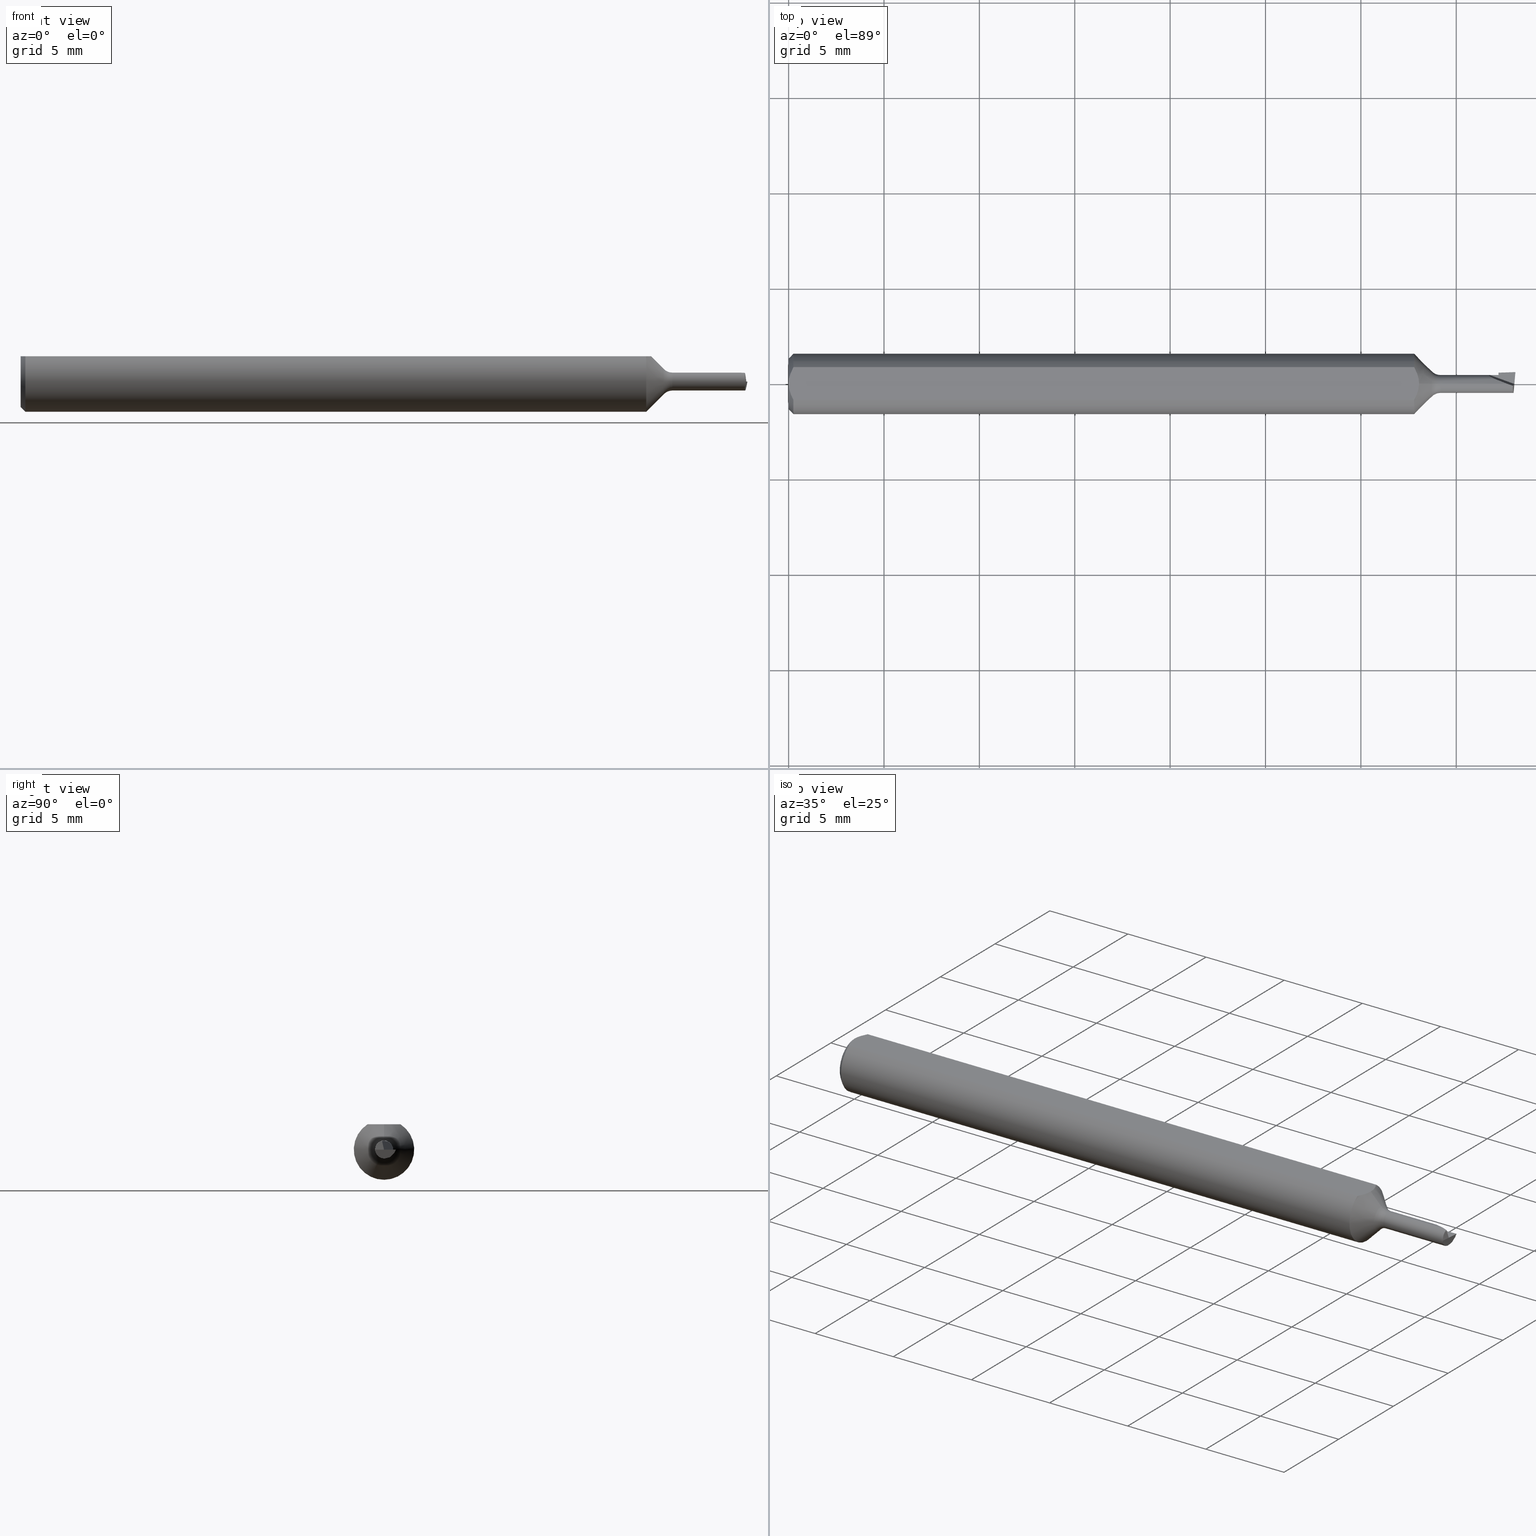
[diagram: canonical four-view strip — front | top / right | iso, engineering-drawing reading convention]
A machine part, canonical four-view strip (front | top / right | iso — engineering-drawing reading convention). The complete STEP part file that produces these views, byte-faithful:
ISO-10303-21;
HEADER;
FILE_DESCRIPTION (( 'STEP AP203' ),
    '1' );
FILE_NAME ('210046-MB045150.STEP',
    '2025-01-30T18:56:11',
    ( '' ),
    ( '' ),
    'SwSTEP 2.0',
    'SolidWorks 2024',
    '' );
FILE_SCHEMA (( 'CONFIG_CONTROL_DESIGN' ));
ENDSEC;

DATA;
#1 = LINE ( 'NONE', #96, #425 ) ;
#2 = DIRECTION ( 'NONE',  ( 0.1396943646708924958, 0.000000000000000000, -0.9901946699913082295 ) ) ;
#3 = EDGE_LOOP ( 'NONE', ( #133, #357, #238, #521, #467 ) ) ;
#4 = PERSON ( 'UNSPECIFIED', 'UNSPECIFIED', 'UNSPECIFIED', ('UNSPECIFIED'), ('UNSPECIFIED'), ('UNSPECIFIED') ) ;
#5 = CC_DESIGN_APPROVAL ( #533, ( #24 ) ) ;
#6 = EDGE_CURVE ( 'NONE', #354, #415, #630, .T. ) ;
#7 = ORIENTED_EDGE ( 'NONE', *, *, #249, .T. ) ;
#8 = VECTOR ( 'NONE', #621, 39.37007874015748143 ) ;
#9 = ORIENTED_EDGE ( 'NONE', *, *, #112, .T. ) ;
#10 = PERSON_AND_ORGANIZATION_ROLE ( 'classification_officer' ) ;
#11 = FACE_OUTER_BOUND ( 'NONE', #302, .T. ) ;
#12 = ORIENTED_EDGE ( 'NONE', *, *, #419, .T. ) ;
#13 = EDGE_CURVE ( 'NONE', #319, #309, #231, .T. ) ;
#14 = AXIS2_PLACEMENT_3D ( 'NONE', #240, #185, #379 ) ;
#15 = CARTESIAN_POINT ( 'NONE',  ( 1.465000000000000080, 0.01850000000000000255, -6.508939666095427711E-17 ) ) ;
#16 = ORIENTED_EDGE ( 'NONE', *, *, #522, .F. ) ;
#17 = VECTOR ( 'NONE', #45, 39.37007874015747433 ) ;
#18 = CARTESIAN_POINT ( 'NONE',  ( 0.01000000000000840841, -0.03386738844395137393, 0.05235000000000001458 ) ) ;
#19 = ORIENTED_EDGE ( 'NONE', *, *, #171, .T. ) ;
#20 = B_SPLINE_CURVE_WITH_KNOTS ( 'NONE', 3,
 ( #507, #25, #423, #230, #420, #366 ),
 .UNSPECIFIED., .F., .F.,
 ( 4, 2, 4 ),
 ( 0.0009229516234078821539, 0.001371626545108044996, 0.001820301466808207621 ),
 .UNSPECIFIED. ) ;
#21 = CARTESIAN_POINT ( 'NONE',  ( 1.453559267999332549, 0.01083704909609771623, 0.01850000000000004072 ) ) ;
#22 = EDGE_CURVE ( 'NONE', #146, #117, #435, .T. ) ;
#23 = ORIENTED_EDGE ( 'NONE', *, *, #33, .F. ) ;
#24 = PRODUCT_DEFINITION_FORMATION_WITH_SPECIFIED_SOURCE ( 'ANY', '', #540, .NOT_KNOWN. ) ;
#25 = CARTESIAN_POINT ( 'NONE',  ( 0.007185421074056205608, 0.02868573718286560742, 0.05235000000000002152 ) ) ;
#26 = VECTOR ( 'NONE', #432, 39.37007874015748854 ) ;
#27 = VERTEX_POINT ( 'NONE', #541 ) ;
#28 = LINE ( 'NONE', #338, #90 ) ;
#29 = ORIENTED_EDGE ( 'NONE', *, *, #608, .F. ) ;
#30 = CARTESIAN_POINT ( 'NONE',  ( 1.291150000000000242, -0.03386738844375220686, 0.05235000000000000070 ) ) ;
#31 = DIRECTION ( 'NONE',  ( 0.9396926207859126468, -0.3420201433256567780, 0.000000000000000000 ) ) ;
#32 = ORIENTED_EDGE ( 'NONE', *, *, #69, .F. ) ;
#33 = EDGE_CURVE ( 'NONE', #607, #67, #137, .T. ) ;
#34 = DIRECTION ( 'NONE',  ( 1.000000000000000000, 0.000000000000000000, 0.000000000000000000 ) ) ;
#35 = CARTESIAN_POINT ( 'NONE',  ( 1.446998957439701083, 0.01849999999999999908, -4.483286445232968331E-18 ) ) ;
#36 = DIRECTION ( 'NONE',  ( -1.000000000000000000, -0.000000000000000000, -0.000000000000000000 ) ) ;
#37 = CC_DESIGN_PERSON_AND_ORGANIZATION_ASSIGNMENT ( #155, #356, ( #24 ) ) ;
#38 = CARTESIAN_POINT ( 'NONE',  ( 1.465000000000000080, 0.004788152334396648772, -0.01786962778634774984 ) ) ;
#39 = VECTOR ( 'NONE', #148, 39.37007874015748143 ) ;
#40 = PLANE ( 'NONE',  #14 ) ;
#41 = DIRECTION ( 'NONE',  ( 0.000000000000000000, 1.000000000000000000, 1.150753554054429375E-16 ) ) ;
#42 = EDGE_CURVE ( 'NONE', #607, #79, #422, .T. ) ;
#43 = DIRECTION ( 'NONE',  ( 0.000000000000000000, 0.000000000000000000, 1.000000000000000000 ) ) ;
#44 = DIRECTION ( 'NONE',  ( 0.000000000000000000, 0.000000000000000000, 1.000000000000000000 ) ) ;
#45 = DIRECTION ( 'NONE',  ( -0.000000000000000000, 0.9659258262890682012, 0.2588190451025212946 ) ) ;
#46 = CC_DESIGN_DATE_AND_TIME_ASSIGNMENT ( #270, #468, ( #371 ) ) ;
#47 = LOCAL_TIME ( 10, 56, 11.00000000000000000, #158 ) ;
#48 = ORIENTED_EDGE ( 'NONE', *, *, #212, .T. ) ;
#49 = AXIS2_PLACEMENT_3D ( 'NONE', #600, #308, #206 ) ;
#50 = CARTESIAN_POINT ( 'NONE',  ( 0.000000000000000000, 0.000000000000000000, 0.000000000000000000 ) ) ;
#51 = CIRCLE ( 'NONE', #391, 0.02582233047033637499 ) ;
#52 = DATE_AND_TIME ( #503, #47 ) ;
#53 = FACE_OUTER_BOUND ( 'NONE', #54, .T. ) ;
#54 = EDGE_LOOP ( 'NONE', ( #374, #557, #16, #407, #605, #473, #323, #500 ) ) ;
#55 = EDGE_CURVE ( 'NONE', #108, #463, #227, .T. ) ;
#56 = DATE_AND_TIME ( #641, #510 ) ;
#57 = AXIS2_PLACEMENT_3D ( 'NONE', #571, #114, #412 ) ;
#58 =( NAMED_UNIT ( * ) PLANE_ANGLE_UNIT ( ) SI_UNIT ( $, .RADIAN. ) );
#59 = ORIENTED_EDGE ( 'NONE', *, *, #212, .F. ) ;
#60 = DIRECTION ( 'NONE',  ( 0.000000000000000000, -0.7073221891495888869, -0.7068913075831623205 ) ) ;
#61 = ADVANCED_FACE ( 'NONE', ( #53 ), #346, .T. ) ;
#62 = ORIENTED_EDGE ( 'NONE', *, *, #601, .F. ) ;
#63 = CARTESIAN_POINT ( 'NONE',  ( 1.500000000000000222, 0.02450000000000000094, -2.134256245050205639E-18 ) ) ;
#64 = ORIENTED_EDGE ( 'NONE', *, *, #451, .F. ) ;
#65 = VECTOR ( 'NONE', #439, 39.37007874015748854 ) ;
#66 = CARTESIAN_POINT ( 'NONE',  ( 0.000000000000000000, 0.000000000000000000, 0.000000000000000000 ) ) ;
#67 = VERTEX_POINT ( 'NONE', #440 ) ;
#68 = ADVANCED_FACE ( 'NONE', ( #636 ), #552, .T. ) ;
#69 = EDGE_CURVE ( 'NONE', #284, #433, #211, .T. ) ;
#70 = PERSON_AND_ORGANIZATION ( #4, #568 ) ;
#71 = PRODUCT_DEFINITION_SHAPE ( 'NONE', 'NONE',  #549 ) ;
#72 = LINE ( 'NONE', #539, #26 ) ;
#73 = ORIENTED_EDGE ( 'NONE', *, *, #130, .T. ) ;
#74 = DIRECTION ( 'NONE',  ( 0.02467767077832642292, -0.7066760308408334135, 0.7071067811865490160 ) ) ;
#75 = ORIENTED_EDGE ( 'NONE', *, *, #555, .T. ) ;
#76 = CARTESIAN_POINT ( 'NONE',  ( 0.000000000000000000, 0.000000000000000000, 0.000000000000000000 ) ) ;
#77 = AXIS2_PLACEMENT_3D ( 'NONE', #577, #535, #294 ) ;
#78 = DIRECTION ( 'NONE',  ( 0.000000000000000000, 0.9659258262890682012, 0.2588190451025212391 ) ) ;
#79 = VERTEX_POINT ( 'NONE', #153 ) ;
#80 = LINE ( 'NONE', #142, #65 ) ;
#81 = PLANE ( 'NONE',  #166 ) ;
#82 = ORIENTED_EDGE ( 'NONE', *, *, #562, .F. ) ;
#83 = ADVANCED_FACE ( 'NONE', ( #352 ), #453, .T. ) ;
#84 = DIRECTION ( 'NONE',  ( -1.000000000000000000, -0.000000000000000000, -0.000000000000000000 ) ) ;
#85 = CARTESIAN_POINT ( 'NONE',  ( 1.483333815684383605, 0.000000000000000000, 0.01850000000000000255 ) ) ;
#86 = ORIENTED_EDGE ( 'NONE', *, *, #482, .T. ) ;
#87 = CARTESIAN_POINT ( 'NONE',  ( 1.500000000000000222, 0.06235000000000000264, 0.05235000000000001458 ) ) ;
#88 = CARTESIAN_POINT ( 'NONE',  ( 1.487126106453287244, -0.001380280959563399447, 0.01850000000000000602 ) ) ;
#89 = EDGE_LOOP ( 'NONE', ( #563, #381, #59, #365 ) ) ;
#90 = VECTOR ( 'NONE', #532, 39.37007874015748143 ) ;
#91 = DIRECTION ( 'NONE',  ( 0.000000000000000000, 0.000000000000000000, 1.000000000000000000 ) ) ;
#92 = CLOSED_SHELL ( 'NONE', ( #573, #310, #402, #61, #245, #355, #204, #316, #337, #68, #378, #103, #259, #239, #543, #449, #222, #83, #461 ) ) ;
#93 = PLANE ( 'NONE',  #363 ) ;
#94 = CARTESIAN_POINT ( 'NONE',  ( 1.345355339059327360, 5.327213576290986981E-18, -0.04350000000000000394 ) ) ;
#95 =( NAMED_UNIT ( * ) SI_UNIT ( $, .STERADIAN. ) SOLID_ANGLE_UNIT ( ) );
#96 = CARTESIAN_POINT ( 'NONE',  ( 1.498845433956495388, 0.02150713782118080994, -0.006327893575437197257 ) ) ;
#97 = DIRECTION ( 'NONE',  ( 0.000000000000000000, 0.000000000000000000, -1.000000000000000000 ) ) ;
#98 = ORIENTED_EDGE ( 'NONE', *, *, #42, .T. ) ;
#99 = VECTOR ( 'NONE', #358, 39.37007874015748854 ) ;
#100 = PERSON_AND_ORGANIZATION ( #4, #568 ) ;
#101 = CARTESIAN_POINT ( 'NONE',  ( 1.327677669529663707, 3.162323435702260084E-18, -0.02582233047033637152 ) ) ;
#102 = VERTEX_POINT ( 'NONE', #304 ) ;
#103 = ADVANCED_FACE ( 'NONE', ( #390 ), #177, .T. ) ;
#104 = PERSON_AND_ORGANIZATION ( #4, #568 ) ;
#105 = DIRECTION ( 'NONE',  ( -1.000000000000000000, -0.000000000000000000, -0.000000000000000000 ) ) ;
#106 = ORIENTED_EDGE ( 'NONE', *, *, #562, .T. ) ;
#107 = APPROVAL_DATE_TIME ( #56, #384 ) ;
#108 = VERTEX_POINT ( 'NONE', #101 ) ;
#109 = CIRCLE ( 'NONE', #598, 0.01850000000000000949 ) ;
#110 = TOROIDAL_SURFACE ( 'NONE', #477, 0.04350000000000000394, 0.02499999999999999445 ) ;
#111 = DATE_AND_TIME ( #464, #620 ) ;
#112 = EDGE_CURVE ( 'NONE', #433, #146, #403, .T. ) ;
#113 = APPLICATION_CONTEXT ( 'configuration controlled 3d designs of mechanical parts and assemblies' ) ;
#114 = DIRECTION ( 'NONE',  ( 0.000000000000000000, -1.000000000000000000, 0.000000000000000000 ) ) ;
#115 = ORIENTED_EDGE ( 'NONE', *, *, #565, .F. ) ;
#116 = CARTESIAN_POINT ( 'NONE',  ( 0.007163450771416182694, -0.02864528976632487248, 0.05235000000000001458 ) ) ;
#117 = VERTEX_POINT ( 'NONE', #545 ) ;
#118 = CARTESIAN_POINT ( 'NONE',  ( 1.465000000000000080, 0.01849999999999999908, -3.729330705459841584E-18 ) ) ;
#119 = EDGE_LOOP ( 'NONE', ( #493, #361, #12, #418, #518, #628 ) ) ;
#120 = DIRECTION ( 'NONE',  ( 0.000000000000000000, 0.000000000000000000, -1.000000000000000000 ) ) ;
#121 = DIRECTION ( 'NONE',  ( 0.9396926207859126468, -0.3420201433256568335, -0.000000000000000000 ) ) ;
#122 = EDGE_LOOP ( 'NONE', ( #566, #488, #526, #150, #126, #513, #265 ) ) ;
#123 = EDGE_CURVE ( 'NONE', #108, #67, #279, .T. ) ;
#124 = AXIS2_PLACEMENT_3D ( 'NONE', #149, #262, #194 ) ;
#125 = CARTESIAN_POINT ( 'NONE',  ( 1.460138284237282980, 0.01984185495899845955, -0.006999999999999996676 ) ) ;
#126 = ORIENTED_EDGE ( 'NONE', *, *, #565, .T. ) ;
#127 = LINE ( 'NONE', #629, #218 ) ;
#128 = CARTESIAN_POINT ( 'NONE',  ( 1.495246590703220857, 2.265596578422603809E-18, -0.01850000000000000255 ) ) ;
#129 = FACE_OUTER_BOUND ( 'NONE', #89, .T. ) ;
#130 = EDGE_CURVE ( 'NONE', #108, #213, #373, .T. ) ;
#131 = AXIS2_PLACEMENT_3D ( 'NONE', #368, #223, #120 ) ;
#132 = DIRECTION ( 'NONE',  ( 0.1396943646708782849, 0.000000000000000000, 0.9901946699913101169 ) ) ;
#133 = ORIENTED_EDGE ( 'NONE', *, *, #180, .T. ) ;
#134 = VECTOR ( 'NONE', #504, 39.37007874015748143 ) ;
#135 = CARTESIAN_POINT ( 'NONE',  ( 1.345355339059327360, 0.000000000000000000, 0.000000000000000000 ) ) ;
#136 = DIRECTION ( 'NONE',  ( 0.000000000000000000, 0.000000000000000000, -1.000000000000000000 ) ) ;
#137 = LINE ( 'NONE', #576, #643 ) ;
#138 =( BOUNDED_CURVE ( )  B_SPLINE_CURVE ( 3, ( #380, #144, #638, #190 ),
 .UNSPECIFIED., .F., .F. ) 
 B_SPLINE_CURVE_WITH_KNOTS ( ( 4, 4 ),
 ( 5.466285219765468995, 5.728084607564617237 ),
 .UNSPECIFIED. ) 
 CURVE ( )  GEOMETRIC_REPRESENTATION_ITEM ( )  RATIONAL_B_SPLINE_CURVE ( ( 1.000000000000000000, 0.9942965742492069214, 0.9942965742492069214, 1.000000000000000000 ) ) 
 REPRESENTATION_ITEM ( '' )  );
#139 = CARTESIAN_POINT ( 'NONE',  ( 1.465000000000000080, 0.01072789620067145060, -0.01627807821413169986 ) ) ;
#140 = DIRECTION ( 'NONE',  ( 0.000000000000000000, 0.2588190451025212391, -0.9659258262890682012 ) ) ;
#141 = CARTESIAN_POINT ( 'NONE',  ( 0.000000000000000000, 0.000000000000000000, 0.01850000000000000255 ) ) ;
#142 = CARTESIAN_POINT ( 'NONE',  ( 1.500296196177055563, 0.02788553779562382914, 3.030643867971292100E-16 ) ) ;
#143 = APPROVAL_PERSON_ORGANIZATION ( #100, #533, #307 ) ;
#144 = CARTESIAN_POINT ( 'NONE',  ( 1.495558491035186899, 0.003224263161052952440, -0.01828867062739698152 ) ) ;
#145 = DIRECTION ( 'NONE',  ( 1.000000000000000000, 0.000000000000000000, 0.000000000000000000 ) ) ;
#146 = VERTEX_POINT ( 'NONE', #251 ) ;
#147 = DIRECTION ( 'NONE',  ( -0.1627401076574647998, -0.4218543546513220388, -0.8919386530593645945 ) ) ;
#148 = DIRECTION ( 'NONE',  ( -0.1593925713349118589, -0.7010550863643484343, -0.6950653020299035756 ) ) ;
#149 = CARTESIAN_POINT ( 'NONE',  ( 0.000000000000000000, 0.000000000000000000, 0.000000000000000000 ) ) ;
#150 = ORIENTED_EDGE ( 'NONE', *, *, #232, .F. ) ;
#151 = DIRECTION ( 'NONE',  ( 1.000000000000000000, 0.000000000000000000, 0.000000000000000000 ) ) ;
#152 = EDGE_CURVE ( 'NONE', #537, #597, #639, .T. ) ;
#153 = CARTESIAN_POINT ( 'NONE',  ( 1.496237987468385322, -0.01849999999999997827, 2.346737396167181165E-16 ) ) ;
#154 = APPROVAL_PERSON_ORGANIZATION ( #104, #384, #599 ) ;
#155 = PERSON_AND_ORGANIZATION ( #4, #568 ) ;
#156 = CARTESIAN_POINT ( 'NONE',  ( 1.345355339059327360, 0.000000000000000000, 0.000000000000000000 ) ) ;
#157 = VECTOR ( 'NONE', #145, 39.37007874015748143 ) ;
#158 = COORDINATED_UNIVERSAL_TIME_OFFSET ( 8, 0, .BEHIND. ) ;
#159 = ORIENTED_EDGE ( 'NONE', *, *, #614, .T. ) ;
#160 = EDGE_CURVE ( 'NONE', #102, #597, #202, .T. ) ;
#161 = APPROVAL_STATUS ( 'not_yet_approved' ) ;
#162 = ORIENTED_EDGE ( 'NONE', *, *, #522, .T. ) ;
#163 = VECTOR ( 'NONE', #181, 39.37007874015748854 ) ;
#164 = VECTOR ( 'NONE', #631, 39.37007874015748854 ) ;
#165 = DIRECTION ( 'NONE',  ( 0.000000000000000000, 0.000000000000000000, 1.000000000000000000 ) ) ;
#166 = AXIS2_PLACEMENT_3D ( 'NONE', #480, #196, #582 ) ;
#167 = ORIENTED_EDGE ( 'NONE', *, *, #180, .F. ) ;
#168 = DIRECTION ( 'NONE',  ( -1.000000000000000000, -0.000000000000000000, -0.000000000000000000 ) ) ;
#169 = EDGE_LOOP ( 'NONE', ( #115, #569, #634, #462 ) ) ;
#170 = LINE ( 'NONE', #125, #99 ) ;
#171 = EDGE_CURVE ( 'NONE', #293, #27, #220, .T. ) ;
#172 = ORIENTED_EDGE ( 'NONE', *, *, #601, .T. ) ;
#173 = PERSON_AND_ORGANIZATION ( #4, #568 ) ;
#174 = CARTESIAN_POINT ( 'NONE',  ( 0.000000000000000000, 0.000000000000000000, 0.000000000000000000 ) ) ;
#175 = ORIENTED_EDGE ( 'NONE', *, *, #199, .T. ) ;
#176 = PRODUCT_RELATED_PRODUCT_CATEGORY ( 'detail', '', ( #540 ) ) ;
#177 = CONICAL_SURFACE ( 'NONE', #450, 0.05235000000000033377, 0.7853981633974376209 ) ;
#178 = DIRECTION ( 'NONE',  ( -1.000000000000000000, -0.000000000000000000, -0.000000000000000000 ) ) ;
#179 = CARTESIAN_POINT ( 'NONE',  ( 1.296488788636946277, 0.02320328458619742157, 0.05235000000000002152 ) ) ;
#180 = EDGE_CURVE ( 'NONE', #269, #415, #517, .T. ) ;
#181 = DIRECTION ( 'NONE',  ( 0.1201445221440181205, 0.9589290576775757469, 0.2569442666034444378 ) ) ;
#182 = LINE ( 'NONE', #578, #531 ) ;
#183 = ORIENTED_EDGE ( 'NONE', *, *, #362, .T. ) ;
#184 = AXIS2_PLACEMENT_3D ( 'NONE', #441, #178, #574 ) ;
#185 = DIRECTION ( 'NONE',  ( 0.03162968562512429027, -0.9057556888204039147, 0.4226182617407007736 ) ) ;
#186 = AXIS2_PLACEMENT_3D ( 'NONE', #87, #334, #437 ) ;
#187 = DIRECTION ( 'NONE',  ( 0.000000000000000000, 0.000000000000000000, 1.000000000000000000 ) ) ;
#188 = CARTESIAN_POINT ( 'NONE',  ( 1.497856527743614885, 5.157748590581906026E-34, -4.482061838879143203E-18 ) ) ;
#189 = CARTESIAN_POINT ( 'NONE',  ( 1.301150000000000029, -0.005924734429433297159, 0.05235000000000002152 ) ) ;
#190 = CARTESIAN_POINT ( 'NONE',  ( 1.495246590703220857, 2.265596578422603809E-18, -0.01850000000000000255 ) ) ;
#191 = ORIENTED_EDGE ( 'NONE', *, *, #264, .T. ) ;
#192 = LINE ( 'NONE', #388, #163 ) ;
#193 = CARTESIAN_POINT ( 'NONE',  ( 1.496688055231696124, 0.01223983799721654366, -0.01587295463074458318 ) ) ;
#194 = DIRECTION ( 'NONE',  ( 0.000000000000000000, 0.000000000000000000, 1.000000000000000000 ) ) ;
#195 = CARTESIAN_POINT ( 'NONE',  ( 1.496237987468385322, -0.01849999999999997827, 2.346737396167181165E-16 ) ) ;
#196 = DIRECTION ( 'NONE',  ( 1.000000000000000000, 0.000000000000000000, 0.000000000000000000 ) ) ;
#197 = DIRECTION ( 'NONE',  ( -1.000000000000000000, -0.000000000000000000, -0.000000000000000000 ) ) ;
#198 = VECTOR ( 'NONE', #487, 39.37007874015748143 ) ;
#199 = EDGE_CURVE ( 'NONE', #313, #266, #272, .T. ) ;
#200 = PERSON_AND_ORGANIZATION ( #4, #568 ) ;
#201 = FACE_OUTER_BOUND ( 'NONE', #505, .T. ) ;
#202 = LINE ( 'NONE', #547, #602 ) ;
#203 = ORIENTED_EDGE ( 'NONE', *, *, #324, .F. ) ;
#204 = ADVANCED_FACE ( 'NONE', ( #250 ), #81, .F. ) ;
#205 = CALENDAR_DATE ( 2025, 30, 1 ) ;
#206 = DIRECTION ( 'NONE',  ( 0.000000000000000000, 0.000000000000000000, 1.000000000000000000 ) ) ;
#207 = CARTESIAN_POINT ( 'NONE',  ( 1.483333815684383605, 0.000000000000000000, 0.01850000000000000255 ) ) ;
#208 = DIRECTION ( 'NONE',  ( 1.000000000000000000, 0.000000000000000000, 0.000000000000000000 ) ) ;
#209 = DESIGN_CONTEXT ( 'detailed design', #113, 'design' ) ;
#210 = CARTESIAN_POINT ( 'NONE',  ( 1.494967355536287235, -0.01849999999999991582, 0.009006612182587471829 ) ) ;
#211 = CIRCLE ( 'NONE', #306, 0.06235000000000000264 ) ;
#212 = EDGE_CURVE ( 'NONE', #444, #284, #570, .T. ) ;
#213 = VERTEX_POINT ( 'NONE', #393 ) ;
#214 = ORIENTED_EDGE ( 'NONE', *, *, #471, .T. ) ;
#215 = COORDINATED_UNIVERSAL_TIME_OFFSET ( 8, 0, .BEHIND. ) ;
#216 = DIRECTION ( 'NONE',  ( -1.000000000000000000, -0.000000000000000000, -0.000000000000000000 ) ) ;
#217 = ORIENTED_EDGE ( 'NONE', *, *, #160, .F. ) ;
#218 = VECTOR ( 'NONE', #383, 39.37007874015748143 ) ;
#219 = FACE_OUTER_BOUND ( 'NONE', #326, .T. ) ;
#220 = CIRCLE ( 'NONE', #460, 0.05235000000000033377 ) ;
#221 = ORIENTED_EDGE ( 'NONE', *, *, #555, .F. ) ;
#222 = ADVANCED_FACE ( 'NONE', ( #335 ), #348, .F. ) ;
#223 = DIRECTION ( 'NONE',  ( -1.000000000000000000, -0.000000000000000000, -0.000000000000000000 ) ) ;
#224 = ORIENTED_EDGE ( 'NONE', *, *, #546, .T. ) ;
#225 = FACE_OUTER_BOUND ( 'NONE', #524, .T. ) ;
#226 = CC_DESIGN_PERSON_AND_ORGANIZATION_ASSIGNMENT ( #70, #10, ( #371 ) ) ;
#227 = LINE ( 'NONE', #395, #134 ) ;
#228 = LOCAL_TIME ( 10, 56, 11.00000000000000000, #215 ) ;
#229 = CIRCLE ( 'NONE', #551, 0.01849999999999999908 ) ;
#230 = CARTESIAN_POINT ( 'NONE',  ( 0.001063697276021357847, 0.01189177144351693735, 0.05235000000000001458 ) ) ;
#231 = LINE ( 'NONE', #141, #633 ) ;
#232 = EDGE_CURVE ( 'NONE', #408, #607, #138, .T. ) ;
#233 = FACE_OUTER_BOUND ( 'NONE', #288, .T. ) ;
#234 = DIRECTION ( 'NONE',  ( 4.188400406518391045E-17, 1.150753554054429375E-16, -1.000000000000000000 ) ) ;
#235 = ORIENTED_EDGE ( 'NONE', *, *, #130, .F. ) ;
#236 = CARTESIAN_POINT ( 'NONE',  ( 1.495246590703220857, 2.265596578422603809E-18, -0.01850000000000000255 ) ) ;
#237 = PLANE ( 'NONE',  #612 ) ;
#238 = ORIENTED_EDGE ( 'NONE', *, *, #490, .F. ) ;
#239 = ADVANCED_FACE ( 'NONE', ( #536 ), #93, .T. ) ;
#240 = CARTESIAN_POINT ( 'NONE',  ( 1.460024366919236094, 0.02310402013190050036, -1.572938430745744944E-18 ) ) ;
#241 = DIRECTION ( 'NONE',  ( 1.000000000000000000, 0.000000000000000000, 0.000000000000000000 ) ) ;
#242 = ORIENTED_EDGE ( 'NONE', *, *, #632, .T. ) ;
#243 = AXIS2_PLACEMENT_3D ( 'NONE', #349, #197, #43 ) ;
#244 = CARTESIAN_POINT ( 'NONE',  ( 1.494952902551172302, -0.004097954674002866546, 0.01804042038007480295 ) ) ;
#245 = ADVANCED_FACE ( 'NONE', ( #340 ), #237, .F. ) ;
#246 = FACE_OUTER_BOUND ( 'NONE', #3, .T. ) ;
#247 = CARTESIAN_POINT ( 'NONE',  ( 0.000000000000000000, 0.000000000000000000, 0.000000000000000000 ) ) ;
#248 = CARTESIAN_POINT ( 'NONE',  ( 1.345355339059327360, 0.000000000000000000, 0.000000000000000000 ) ) ;
#249 = EDGE_CURVE ( 'NONE', #481, #319, #253, .T. ) ;
#250 = FACE_OUTER_BOUND ( 'NONE', #550, .T. ) ;
#251 = CARTESIAN_POINT ( 'NONE',  ( 1.291150000000000242, 0.03386738844375220686, 0.05235000000000000070 ) ) ;
#252 = APPROVAL_STATUS ( 'not_yet_approved' ) ;
#253 =( BOUNDED_CURVE ( )  B_SPLINE_CURVE ( 3, ( #298, #591, #88, #85 ),
 .UNSPECIFIED., .F., .F. ) 
 B_SPLINE_CURVE_WITH_KNOTS ( ( 4, 4 ),
 ( 4.766799014753298813, 4.990162771046300350 ),
 .UNSPECIFIED. ) 
 CURVE ( )  GEOMETRIC_REPRESENTATION_ITEM ( )  RATIONAL_B_SPLINE_CURVE ( ( 1.000000000000000000, 0.9958467056734143785, 0.9958467056734143785, 1.000000000000000000 ) ) 
 REPRESENTATION_ITEM ( '' )  );
#254 = CC_DESIGN_APPROVAL ( #384, ( #549 ) ) ;
#255 = CARTESIAN_POINT ( 'NONE',  ( 1.345355339059327360, 0.000000000000000000, 0.01850000000000000949 ) ) ;
#256 = DIRECTION ( 'NONE',  ( 0.000000000000000000, -0.7073221891495888869, -0.7068913075831623205 ) ) ;
#257 = AXIS2_PLACEMENT_3D ( 'NONE', #417, #74, #60 ) ;
#258 = ORIENTED_EDGE ( 'NONE', *, *, #431, .F. ) ;
#259 = ADVANCED_FACE ( 'NONE', ( #246 ), #287, .F. ) ;
#260 = CARTESIAN_POINT ( 'NONE',  ( 0.000000000000000000, 0.000000000000000000, 0.000000000000000000 ) ) ;
#261 = APPROVAL_DATE_TIME ( #52, #533 ) ;
#262 = DIRECTION ( 'NONE',  ( -1.000000000000000000, -0.000000000000000000, -0.000000000000000000 ) ) ;
#263 = LENGTH_MEASURE_WITH_UNIT ( LENGTH_MEASURE( 0.02539999999999999897 ), #637 );
#264 = EDGE_CURVE ( 'NONE', #213, #108, #51, .T. ) ;
#265 = ORIENTED_EDGE ( 'NONE', *, *, #640, .F. ) ;
#266 = VERTEX_POINT ( 'NONE', #193 ) ;
#267 = DIRECTION ( 'NONE',  ( 0.000000000000000000, 0.000000000000000000, -1.000000000000000000 ) ) ;
#268 = EDGE_CURVE ( 'NONE', #408, #537, #442, .T. ) ;
#269 = VERTEX_POINT ( 'NONE', #35 ) ;
#270 = DATE_AND_TIME ( #613, #228 ) ;
#271 = DIRECTION ( 'NONE',  ( 1.000000000000000000, 0.000000000000000000, 0.000000000000000000 ) ) ;
#272 = LINE ( 'NONE', #528, #39 ) ;
#273 = ORIENTED_EDGE ( 'NONE', *, *, #409, .F. ) ;
#274 =( BOUNDED_CURVE ( )  B_SPLINE_CURVE ( 3, ( #325, #21, #610, #564 ),
 .UNSPECIFIED., .F., .F. ) 
 B_SPLINE_CURVE_WITH_KNOTS ( ( 4, 4 ),
 ( 4.990162771046300350, 6.560959097841200460 ),
 .UNSPECIFIED. ) 
 CURVE ( )  GEOMETRIC_REPRESENTATION_ITEM ( )  RATIONAL_B_SPLINE_CURVE ( ( 1.000000000000000000, 0.8047378541243641603, 0.8047378541243641603, 1.000000000000000000 ) ) 
 REPRESENTATION_ITEM ( '' )  );
#275 = EDGE_CURVE ( 'NONE', #269, #430, #182, .T. ) ;
#276 = AXIS2_PLACEMENT_3D ( 'NONE', #66, #271, #267 ) ;
#277 = APPROVAL_ROLE ( '' ) ;
#278 = CARTESIAN_POINT ( 'NONE',  ( 0.009999999999999890921, 0.03386738844375217911, 0.05235000000000001458 ) ) ;
#279 = CIRCLE ( 'NONE', #494, 0.02499999999999999445 ) ;
#280 = ORIENTED_EDGE ( 'NONE', *, *, #454, .F. ) ;
#281 = FACE_OUTER_BOUND ( 'NONE', #290, .T. ) ;
#282 = EDGE_LOOP ( 'NONE', ( #572, #501, #353, #162 ) ) ;
#283 = CYLINDRICAL_SURFACE ( 'NONE', #426, 0.01850000000000000255 ) ;
#284 = VERTEX_POINT ( 'NONE', #512 ) ;
#285 = CIRCLE ( 'NONE', #57, 0.02499999999999999445 ) ;
#286 = LINE ( 'NONE', #584, #530 ) ;
#287 = PLANE ( 'NONE',  #502 ) ;
#288 = EDGE_LOOP ( 'NONE', ( #509, #595, #258, #280 ) ) ;
#289 = DIRECTION ( 'NONE',  ( 1.000000000000000000, 0.000000000000000000, 0.000000000000000000 ) ) ;
#290 = EDGE_LOOP ( 'NONE', ( #23, #98, #534, #7, #336, #221 ) ) ;
#291 = CARTESIAN_POINT ( 'NONE',  ( 1.301150000000000029, -1.477724559795570125E-21, 0.05235000000000001458 ) ) ;
#292 = DIRECTION ( 'NONE',  ( -1.000000000000000000, -0.000000000000000000, -0.000000000000000000 ) ) ;
#293 = VERTEX_POINT ( 'NONE', #642 ) ;
#294 = DIRECTION ( 'NONE',  ( 0.000000000000000000, 0.000000000000000000, 1.000000000000000000 ) ) ;
#295 = DIRECTION ( 'NONE',  ( -0.3303660895493409355, -0.9076733711903737234, -0.2588190451025175753 ) ) ;
#296 = DIRECTION ( 'NONE',  ( -1.000000000000000000, -0.000000000000000000, -0.000000000000000000 ) ) ;
#297 = CARTESIAN_POINT ( 'NONE',  ( 1.300078879331740378, -0.01191647624495715749, 0.05235000000000002152 ) ) ;
#298 = CARTESIAN_POINT ( 'NONE',  ( 1.494952902551172302, -0.004097954674002866546, 0.01804042038007480295 ) ) ;
#299 = DIRECTION ( 'NONE',  ( -0.000000000000000000, 1.000000000000000000, 1.224646799147353207E-16 ) ) ;
#300 =( CONVERSION_BASED_UNIT ( 'INCH', #263 ) LENGTH_UNIT ( ) NAMED_UNIT ( #478 ) );
#301 = CC_DESIGN_PERSON_AND_ORGANIZATION_ASSIGNMENT ( #200, #457, ( #549 ) ) ;
#302 = EDGE_LOOP ( 'NONE', ( #235, #317, #75, #485 ) ) ;
#303 = CARTESIAN_POINT ( 'NONE',  ( 1.327677669529663707, 0.000000000000000000, 0.02582233047033637499 ) ) ;
#304 = CARTESIAN_POINT ( 'NONE',  ( 1.465000000000000080, 0.02001162981448263017, -0.006999999999999996676 ) ) ;
#305 = AXIS2_PLACEMENT_3D ( 'NONE', #135, #84, #428 ) ;
#306 = AXIS2_PLACEMENT_3D ( 'NONE', #456, #151, #97 ) ;
#307 = APPROVAL_ROLE ( '' ) ;
#308 = DIRECTION ( 'NONE',  ( -1.000000000000000000, -0.000000000000000000, -0.000000000000000000 ) ) ;
#309 = VERTEX_POINT ( 'NONE', #255 ) ;
#310 = ADVANCED_FACE ( 'NONE', ( #201 ), #329, .T. ) ;
#311 = PERSON_AND_ORGANIZATION_ROLE ( 'creator' ) ;
#312 = AXIS2_PLACEMENT_3D ( 'NONE', #615, #216, #165 ) ;
#313 = VERTEX_POINT ( 'NONE', #398 ) ;
#314 = CARTESIAN_POINT ( 'NONE',  ( 1.465000000000000080, 0.000000000000000000, 0.000000000000000000 ) ) ;
#315 = EDGE_LOOP ( 'NONE', ( #387, #64, #341, #32 ) ) ;
#316 = ADVANCED_FACE ( 'NONE', ( #596 ), #110, .F. ) ;
#317 = ORIENTED_EDGE ( 'NONE', *, *, #123, .T. ) ;
#318 = CARTESIAN_POINT ( 'NONE',  ( 0.000000000000000000, 0.000000000000000000, 0.05235000000000033377 ) ) ;
#319 = VERTEX_POINT ( 'NONE', #207 ) ;
#320 = CIRCLE ( 'NONE', #184, 0.06235000000000000264 ) ;
#321 = CARTESIAN_POINT ( 'NONE',  ( 0.001055043921644571291, -0.01186408073217194367, 0.05235000000000002152 ) ) ;
#322 = VECTOR ( 'NONE', #121, 39.37007874015748854 ) ;
#323 = ORIENTED_EDGE ( 'NONE', *, *, #409, .T. ) ;
#324 = EDGE_CURVE ( 'NONE', #319, #269, #274, .T. ) ;
#325 = CARTESIAN_POINT ( 'NONE',  ( 1.483333815684383605, 0.000000000000000000, 0.01850000000000000255 ) ) ;
#326 = EDGE_LOOP ( 'NONE', ( #424, #175, #421, #217 ) ) ;
#327 = FACE_OUTER_BOUND ( 'NONE', #119, .T. ) ;
#328 = CARTESIAN_POINT ( 'NONE',  ( 1.494298471761238423, -0.01083704909609782378, -0.01850000000000001990 ) ) ;
#329 = CONICAL_SURFACE ( 'NONE', #49, 0.02582233047033637499, 0.7853981633974507215 ) ;
#330 = PLANE ( 'NONE',  #186 ) ;
#331 = EDGE_CURVE ( 'NONE', #433, #27, #20, .T. ) ;
#332 = ORIENTED_EDGE ( 'NONE', *, *, #249, .F. ) ;
#333 = AXIS2_PLACEMENT_3D ( 'NONE', #247, #553, #592 ) ;
#334 = DIRECTION ( 'NONE',  ( 0.000000000000000000, 0.000000000000000000, -1.000000000000000000 ) ) ;
#335 = FACE_OUTER_BOUND ( 'NONE', #122, .T. ) ;
#336 = ORIENTED_EDGE ( 'NONE', *, *, #13, .T. ) ;
#337 = ADVANCED_FACE ( 'NONE', ( #225 ), #466, .T. ) ;
#338 = CARTESIAN_POINT ( 'NONE',  ( 1.496776916841381366, -0.001529360825625118410, 0.006704173061983520650 ) ) ;
#339 =( BOUNDED_CURVE ( )  B_SPLINE_CURVE ( 3, ( #544, #350, #210, #195 ),
 .UNSPECIFIED., .F., .F. ) 
 B_SPLINE_CURVE_WITH_KNOTS ( ( 4, 4 ),
 ( 5.951448363857583246, 7.298880934359466721 ),
 .UNSPECIFIED. ) 
 CURVE ( )  GEOMETRIC_REPRESENTATION_ITEM ( )  RATIONAL_B_SPLINE_CURVE ( ( 1.000000000000000000, 0.8543389983611018312, 0.8543389983611018312, 1.000000000000000000 ) ) 
 REPRESENTATION_ITEM ( '' )  );
#340 = FACE_OUTER_BOUND ( 'NONE', #625, .T. ) ;
#341 = ORIENTED_EDGE ( 'NONE', *, *, #331, .F. ) ;
#342 = CC_DESIGN_PERSON_AND_ORGANIZATION_ASSIGNMENT ( #400, #311, ( #24 ) ) ;
#343 = CC_DESIGN_APPROVAL ( #436, ( #371 ) ) ;
#344 = CARTESIAN_POINT ( 'NONE',  ( 1.291150000000000242, -0.03386738844375220686, 0.05235000000000000070 ) ) ;
#345 = CARTESIAN_POINT ( 'NONE',  ( 1.495443673491787084, 0.02831007852008725692, -0.03465938240595493186 ) ) ;
#346 = CYLINDRICAL_SURFACE ( 'NONE', #333, 0.01850000000000000255 ) ;
#347 = CC_DESIGN_PERSON_AND_ORGANIZATION_ASSIGNMENT ( #644, #455, ( #540 ) ) ;
#348 = PLANE ( 'NONE',  #561 ) ;
#349 = CARTESIAN_POINT ( 'NONE',  ( 1.327677669529663707, 0.000000000000000000, 0.000000000000000000 ) ) ;
#350 = CARTESIAN_POINT ( 'NONE',  ( 1.494465960141844629, -0.01288082332125571779, 0.01604535613734156541 ) ) ;
#351 = APPLICATION_PROTOCOL_DEFINITION ( 'international standard', 'config_control_design', 1994, #113 ) ;
#352 = FACE_OUTER_BOUND ( 'NONE', #369, .T. ) ;
#353 = ORIENTED_EDGE ( 'NONE', *, *, #370, .T. ) ;
#354 = VERTEX_POINT ( 'NONE', #63 ) ;
#355 = ADVANCED_FACE ( 'NONE', ( #281 ), #283, .T. ) ;
#356 = PERSON_AND_ORGANIZATION_ROLE ( 'design_supplier' ) ;
#357 = ORIENTED_EDGE ( 'NONE', *, *, #6, .F. ) ;
#358 = DIRECTION ( 'NONE',  ( 0.9993908270190960952, 0.03489949670248750080, -0.000000000000000000 ) ) ;
#359 = LOCAL_TIME ( 10, 56, 11.00000000000000000, #593 ) ;
#360 = CIRCLE ( 'NONE', #77, 0.06235000000000000264 ) ;
#361 = ORIENTED_EDGE ( 'NONE', *, *, #331, .T. ) ;
#362 = EDGE_CURVE ( 'NONE', #430, #611, #519, .T. ) ;
#363 = AXIS2_PLACEMENT_3D ( 'NONE', #588, #140, #78 ) ;
#364 = CARTESIAN_POINT ( 'NONE',  ( -1.070637973615595603E-15, -0.005965286321711177862, 0.05235000000000002152 ) ) ;
#365 = ORIENTED_EDGE ( 'NONE', *, *, #419, .F. ) ;
#366 = CARTESIAN_POINT ( 'NONE',  ( 0.000000000000000000, 0.000000000000000000, 0.05235000000000033377 ) ) ;
#367 = ORIENTED_EDGE ( 'NONE', *, *, #160, .T. ) ;
#368 = CARTESIAN_POINT ( 'NONE',  ( 0.000000000000000000, 0.000000000000000000, 0.000000000000000000 ) ) ;
#369 = EDGE_LOOP ( 'NONE', ( #172, #159, #29 ) ) ;
#370 = EDGE_CURVE ( 'NONE', #213, #309, #285, .T. ) ;
#371 = SECURITY_CLASSIFICATION ( '', '', #556 ) ;
#372 = DIRECTION ( 'NONE',  ( 0.000000000000000000, 0.000000000000000000, 1.000000000000000000 ) ) ;
#373 = CIRCLE ( 'NONE', #243, 0.02582233047033637499 ) ;
#374 = ORIENTED_EDGE ( 'NONE', *, *, #232, .T. ) ;
#375 = CARTESIAN_POINT ( 'NONE',  ( 0.7984117945685827999, 3.886970232290855934E-33, -3.377760788655366709E-17 ) ) ;
#376 = DIRECTION ( 'NONE',  ( 0.000000000000000000, 0.000000000000000000, -1.000000000000000000 ) ) ;
#377 = CARTESIAN_POINT ( 'NONE',  ( 1.301150000000000029, 0.005920815533600997868, 0.05235000000000002152 ) ) ;
#378 = ADVANCED_FACE ( 'NONE', ( #472 ), #469, .F. ) ;
#379 = DIRECTION ( 'NONE',  ( 0.000000000000000000, -0.4228298219691071225, -0.9062091048171900809 ) ) ;
#380 = CARTESIAN_POINT ( 'NONE',  ( 1.495754431199804557, 0.004788152334396648772, -0.01786962778634774984 ) ) ;
#381 = ORIENTED_EDGE ( 'NONE', *, *, #489, .T. ) ;
#382 = TOROIDAL_SURFACE ( 'NONE', #312, 0.04350000000000000394, 0.02499999999999999445 ) ;
#383 = DIRECTION ( 'NONE',  ( 0.7071067811865550112, 0.000000000000000000, -0.7071067811865400232 ) ) ;
#384 = APPROVAL ( #252, 'UNSPECIFIED' ) ;
#385 = CARTESIAN_POINT ( 'NONE',  ( 1.301150000000000029, -1.477724559795570125E-21, 0.05235000000000001458 ) ) ;
#386 = DIRECTION ( 'NONE',  ( 0.000000000000000000, 0.000000000000000000, -1.000000000000000000 ) ) ;
#387 = ORIENTED_EDGE ( 'NONE', *, *, #489, .F. ) ;
#388 = CARTESIAN_POINT ( 'NONE',  ( 1.496684692676496731, 0.01221299988732022293, -0.01588014588061767429 ) ) ;
#389 = CARTESIAN_POINT ( 'NONE',  ( 0.009999999999999887451, 0.000000000000000000, 0.000000000000000000 ) ) ;
#390 = FACE_OUTER_BOUND ( 'NONE', #315, .T. ) ;
#391 = AXIS2_PLACEMENT_3D ( 'NONE', #627, #292, #187 ) ;
#392 = DIRECTION ( 'NONE',  ( -0.7071067811865457964, 0.000000000000000000, 0.7071067811865492381 ) ) ;
#393 = CARTESIAN_POINT ( 'NONE',  ( 1.327677669529663707, 0.000000000000000000, 0.02582233047033637152 ) ) ;
#394 = CARTESIAN_POINT ( 'NONE',  ( 1.465000000000000080, 0.02204888731940269492, -0.01324462778634774400 ) ) ;
#395 = CARTESIAN_POINT ( 'NONE',  ( 1.327677669529663707, 3.162323435702260854E-18, -0.02582233047033637499 ) ) ;
#396 = ORIENTED_EDGE ( 'NONE', *, *, #152, .F. ) ;
#397 = DATE_AND_TIME ( #205, #359 ) ;
#398 = CARTESIAN_POINT ( 'NONE',  ( 1.498722803693174566, 0.02118925606886698162, -0.006999999999999996676 ) ) ;
#399 = DIRECTION ( 'NONE',  ( 0.000000000000000000, 0.000000000000000000, -1.000000000000000000 ) ) ;
#400 = PERSON_AND_ORGANIZATION ( #4, #568 ) ;
#401 = AXIS2_PLACEMENT_3D ( 'NONE', #260, #44, #452 ) ;
#402 = ADVANCED_FACE ( 'NONE', ( #11 ), #382, .F. ) ;
#403 = LINE ( 'NONE', #589, #157 ) ;
#404 = EDGE_LOOP ( 'NONE', ( #560, #19 ) ) ;
#405 = B_SPLINE_CURVE_WITH_KNOTS ( 'NONE', 3,
 ( #318, #364, #321, #514, #116, #475 ),
 .UNSPECIFIED., .F., .F.,
 ( 4, 2, 4 ),
 ( 0.001820301466808207621, 0.002269751589840481119, 0.002719201712872754834 ),
 .UNSPECIFIED. ) ;
#406 = DATE_TIME_ROLE ( 'creation_date' ) ;
#407 = ORIENTED_EDGE ( 'NONE', *, *, #13, .F. ) ;
#408 = VERTEX_POINT ( 'NONE', #465 ) ;
#409 = EDGE_CURVE ( 'NONE', #430, #537, #229, .T. ) ;
#410 = MANIFOLD_SOLID_BREP ( 'Cut-Extrude8', #92 ) ;
#411 = COORDINATED_UNIVERSAL_TIME_OFFSET ( 8, 0, .BEHIND. ) ;
#412 = DIRECTION ( 'NONE',  ( 0.000000000000000000, 0.000000000000000000, -1.000000000000000000 ) ) ;
#413 = CC_DESIGN_SECURITY_CLASSIFICATION ( #371, ( #24 ) ) ;
#414 = AXIS2_PLACEMENT_3D ( 'NONE', #516, #168, #619 ) ;
#415 = VERTEX_POINT ( 'NONE', #567 ) ;
#416 = SHAPE_DEFINITION_REPRESENTATION ( #71, #538 ) ;
#417 = CARTESIAN_POINT ( 'NONE',  ( 1.460138284237282980, 0.01984185495899845955, -0.006999999999999996676 ) ) ;
#418 = ORIENTED_EDGE ( 'NONE', *, *, #482, .F. ) ;
#419 = EDGE_CURVE ( 'NONE', #27, #444, #405, .T. ) ;
#420 = CARTESIAN_POINT ( 'NONE',  ( -1.099542139246802830E-15, 0.005954997531773979953, 0.05235000000000002152 ) ) ;
#421 = ORIENTED_EDGE ( 'NONE', *, *, #586, .T. ) ;
#422 =( BOUNDED_CURVE ( )  B_SPLINE_CURVE ( 3, ( #128, #328, #594, #499 ),
 .UNSPECIFIED., .F., .F. ) 
 B_SPLINE_CURVE_WITH_KNOTS ( ( 4, 4 ),
 ( 5.728084607564617237, 7.298880934359527117 ),
 .UNSPECIFIED. ) 
 CURVE ( )  GEOMETRIC_REPRESENTATION_ITEM ( )  RATIONAL_B_SPLINE_CURVE ( ( 1.000000000000000000, 0.8047378541243618288, 0.8047378541243618288, 1.000000000000000000 ) ) 
 REPRESENTATION_ITEM ( '' )  );
#423 = CARTESIAN_POINT ( 'NONE',  ( 0.004671770759546769666, 0.02323517832780105236, 0.05235000000000002152 ) ) ;
#424 = ORIENTED_EDGE ( 'NONE', *, *, #431, .T. ) ;
#425 = VECTOR ( 'NONE', #147, 39.37007874015747433 ) ;
#426 = AXIS2_PLACEMENT_3D ( 'NONE', #174, #623, #372 ) ;
#427 = CARTESIAN_POINT ( 'NONE',  ( 1.293992034642579059, 0.02863519109676607513, 0.05235000000000002152 ) ) ;
#428 = DIRECTION ( 'NONE',  ( 0.000000000000000000, 0.000000000000000000, 1.000000000000000000 ) ) ;
#429 = CARTESIAN_POINT ( 'NONE',  ( 1.560200597524541877, 0.004788152334396648772, -0.01786962778634774984 ) ) ;
#430 = VERTEX_POINT ( 'NONE', #15 ) ;
#431 = EDGE_CURVE ( 'NONE', #102, #313, #170, .T. ) ;
#432 = DIRECTION ( 'NONE',  ( 0.000000000000000000, -0.4228298219691071225, -0.9062091048171900809 ) ) ;
#433 = VERTEX_POINT ( 'NONE', #278 ) ;
#434 =( GEOMETRIC_REPRESENTATION_CONTEXT ( 3 ) GLOBAL_UNCERTAINTY_ASSIGNED_CONTEXT ( ( #508 ) ) GLOBAL_UNIT_ASSIGNED_CONTEXT ( ( #300, #58, #95 ) ) REPRESENTATION_CONTEXT ( 'NONE', 'WORKASPACE' ) );
#435 = B_SPLINE_CURVE_WITH_KNOTS ( 'NONE', 3,
 ( #476, #427, #179, #585, #377, #385 ),
 .UNSPECIFIED., .F., .F.,
 ( 4, 2, 4 ),
 ( 0.002018861167849301565, 0.002467762199066080540, 0.002916663230282859516 ),
 .UNSPECIFIED. ) ;
#436 = APPROVAL ( #161, 'UNSPECIFIED' ) ;
#437 = DIRECTION ( 'NONE',  ( -1.000000000000000000, 0.000000000000000000, -0.000000000000000000 ) ) ;
#438 = AXIS2_PLACEMENT_3D ( 'NONE', #645, #443, #2 ) ;
#439 = DIRECTION ( 'NONE',  ( -0.08715574274765616747, -0.9961946980917456562, -1.468785387815777068E-15 ) ) ;
#440 = CARTESIAN_POINT ( 'NONE',  ( 1.345355339059327360, 2.265596578422604194E-18, -0.01850000000000000949 ) ) ;
#441 = CARTESIAN_POINT ( 'NONE',  ( 1.291150000000000242, 0.000000000000000000, 0.000000000000000000 ) ) ;
#442 = LINE ( 'NONE', #429, #198 ) ;
#443 = DIRECTION ( 'NONE',  ( 0.9864997997699033183, -0.08630754905047478831, 0.1391731009600657154 ) ) ;
#444 = VERTEX_POINT ( 'NONE', #18 ) ;
#445 = AXIS2_PLACEMENT_3D ( 'NONE', #76, #34, #386 ) ;
#446 = VECTOR ( 'NONE', #581, 39.37007874015748143 ) ;
#447 = COORDINATED_UNIVERSAL_TIME_OFFSET ( 8, 0, .BEHIND. ) ;
#448 = CARTESIAN_POINT ( 'NONE',  ( 0.000000000000000000, 0.000000000000000000, 0.000000000000000000 ) ) ;
#449 = ADVANCED_FACE ( 'NONE', ( #219 ), #559, .F. ) ;
#450 = AXIS2_PLACEMENT_3D ( 'NONE', #50, #208, #399 ) ;
#451 = EDGE_CURVE ( 'NONE', #27, #293, #590, .T. ) ;
#452 = DIRECTION ( 'NONE',  ( 1.000000000000000000, 0.000000000000000000, 0.000000000000000000 ) ) ;
#453 = PLANE ( 'NONE',  #438 ) ;
#454 = EDGE_CURVE ( 'NONE', #611, #102, #72, .T. ) ;
#455 = PERSON_AND_ORGANIZATION_ROLE ( 'design_owner' ) ;
#456 = CARTESIAN_POINT ( 'NONE',  ( 0.009999999999999887451, 0.000000000000000000, 0.000000000000000000 ) ) ;
#457 = PERSON_AND_ORGANIZATION_ROLE ( 'creator' ) ;
#458 = VECTOR ( 'NONE', #392, 39.37007874015748143 ) ;
#459 = ORIENTED_EDGE ( 'NONE', *, *, #454, .T. ) ;
#460 = AXIS2_PLACEMENT_3D ( 'NONE', #448, #624, #376 ) ;
#461 = ADVANCED_FACE ( 'NONE', ( #327 ), #330, .F. ) ;
#462 = ORIENTED_EDGE ( 'NONE', *, *, #586, .F. ) ;
#463 = VERTEX_POINT ( 'NONE', #491 ) ;
#464 = CALENDAR_DATE ( 2025, 30, 1 ) ;
#465 = CARTESIAN_POINT ( 'NONE',  ( 1.495754431199804557, 0.004788152334396648772, -0.01786962778634774984 ) ) ;
#466 = CONICAL_SURFACE ( 'NONE', #414, 0.02582233047033637499, 0.7853981633974507215 ) ;
#467 = ORIENTED_EDGE ( 'NONE', *, *, #275, .F. ) ;
#468 = DATE_TIME_ROLE ( 'classification_date' ) ;
#469 = PLANE ( 'NONE',  #276 ) ;
#470 = ORIENTED_EDGE ( 'NONE', *, *, #22, .T. ) ;
#471 = EDGE_CURVE ( 'NONE', #146, #463, #360, .T. ) ;
#472 = FACE_OUTER_BOUND ( 'NONE', #404, .T. ) ;
#473 = ORIENTED_EDGE ( 'NONE', *, *, #275, .T. ) ;
#474 = B_SPLINE_CURVE_WITH_KNOTS ( 'NONE', 3,
 ( #291, #189, #297, #626, #486, #30 ),
 .UNSPECIFIED., .F., .F.,
 ( 4, 2, 4 ),
 ( 0.002916663230282859516, 0.003365861382119317465, 0.003815059533955774979 ),
 .UNSPECIFIED. ) ;
#475 = CARTESIAN_POINT ( 'NONE',  ( 0.01000000000000840841, -0.03386738844395137393, 0.05235000000000001458 ) ) ;
#476 = CARTESIAN_POINT ( 'NONE',  ( 1.291150000000000242, 0.03386738844375220686, 0.05235000000000000070 ) ) ;
#477 = AXIS2_PLACEMENT_3D ( 'NONE', #156, #105, #604 ) ;
#478 = DIMENSIONAL_EXPONENTS ( 1.000000000000000000, 0.000000000000000000, 0.000000000000000000, 0.000000000000000000, 0.000000000000000000, 0.000000000000000000, 0.000000000000000000 ) ;
#479 = DIRECTION ( 'NONE',  ( -0.9987822236179720869, -0.04765519936432637688, -0.01276917218481542736 ) ) ;
#480 = CARTESIAN_POINT ( 'NONE',  ( 1.465000000000000080, 0.01849999999999999908, 0.000000000000000000 ) ) ;
#481 = VERTEX_POINT ( 'NONE', #244 ) ;
#482 = EDGE_CURVE ( 'NONE', #618, #444, #495, .T. ) ;
#483 = DIRECTION ( 'NONE',  ( -1.000000000000000000, -0.000000000000000000, -0.000000000000000000 ) ) ;
#484 = DIRECTION ( 'NONE',  ( -0.9864997997699066490, 0.08630754905045856518, 0.1391731009600517543 ) ) ;
#485 = ORIENTED_EDGE ( 'NONE', *, *, #370, .F. ) ;
#486 = CARTESIAN_POINT ( 'NONE',  ( 1.294001488371463227, -0.02861778674340261300, 0.05235000000000002152 ) ) ;
#487 = DIRECTION ( 'NONE',  ( -1.000000000000000000, 0.000000000000000000, 0.000000000000000000 ) ) ;
#488 = ORIENTED_EDGE ( 'NONE', *, *, #608, .T. ) ;
#489 = EDGE_CURVE ( 'NONE', #293, #284, #127, .T. ) ;
#490 = EDGE_CURVE ( 'NONE', #611, #354, #527, .T. ) ;
#491 = CARTESIAN_POINT ( 'NONE',  ( 1.291150000000000242, 7.635672792683746671E-18, -0.06235000000000000264 ) ) ;
#492 = CARTESIAN_POINT ( 'NONE',  ( 1.405776579097274936, 0.03350371870230225285, -4.483286445232968331E-18 ) ) ;
#493 = ORIENTED_EDGE ( 'NONE', *, *, #112, .F. ) ;
#494 = AXIS2_PLACEMENT_3D ( 'NONE', #94, #299, #497 ) ;
#495 = LINE ( 'NONE', #635, #446 ) ;
#496 = CARTESIAN_POINT ( 'NONE',  ( 1.418295385203593328, 0.06789885579794455173, -9.160938846980685724E-22 ) ) ;
#497 = DIRECTION ( 'NONE',  ( 0.000000000000000000, -1.224646799147353207E-16, 1.000000000000000000 ) ) ;
#498 = APPLICATION_CONTEXT ( 'configuration controlled 3d designs of mechanical parts and assemblies' ) ;
#499 = CARTESIAN_POINT ( 'NONE',  ( 1.496237987468385322, -0.01849999999999997827, 2.346737396167181165E-16 ) ) ;
#500 = ORIENTED_EDGE ( 'NONE', *, *, #268, .F. ) ;
#501 = ORIENTED_EDGE ( 'NONE', *, *, #264, .F. ) ;
#502 = AXIS2_PLACEMENT_3D ( 'NONE', #496, #234, #41 ) ;
#503 = CALENDAR_DATE ( 2025, 30, 1 ) ;
#504 = DIRECTION ( 'NONE',  ( -0.7071067811865457964, 8.659560562354953812E-17, -0.7071067811865492381 ) ) ;
#505 = EDGE_LOOP ( 'NONE', ( #191, #529, #515, #470, #616 ) ) ;
#506 = MECHANICAL_CONTEXT ( 'NONE', #498, 'mechanical' ) ;
#507 = CARTESIAN_POINT ( 'NONE',  ( 0.009999999999999890921, 0.03386738844375217911, 0.05235000000000001458 ) ) ;
#508 = UNCERTAINTY_MEASURE_WITH_UNIT (LENGTH_MEASURE( 1.000000000000000082E-05 ), #300, 'distance_accuracy_value', 'NONE');
#509 = ORIENTED_EDGE ( 'NONE', *, *, #490, .T. ) ;
#510 = LOCAL_TIME ( 10, 56, 11.00000000000000000, #447 ) ;
#511 = APPLICATION_PROTOCOL_DEFINITION ( 'international standard', 'config_control_design', 1994, #498 ) ;
#512 = CARTESIAN_POINT ( 'NONE',  ( 0.009999999999999887451, 0.000000000000000000, -0.06235000000000000264 ) ) ;
#513 = ORIENTED_EDGE ( 'NONE', *, *, #199, .F. ) ;
#514 = CARTESIAN_POINT ( 'NONE',  ( 0.004679365186825695105, -0.02325953974091124477, 0.05235000000000000764 ) ) ;
#515 = ORIENTED_EDGE ( 'NONE', *, *, #471, .F. ) ;
#516 = CARTESIAN_POINT ( 'NONE',  ( 1.327677669529663707, 0.000000000000000000, 0.000000000000000000 ) ) ;
#517 = LINE ( 'NONE', #575, #322 ) ;
#518 = ORIENTED_EDGE ( 'NONE', *, *, #546, .F. ) ;
#519 = LINE ( 'NONE', #118, #558 ) ;
#520 = APPROVAL_PERSON_ORGANIZATION ( #173, #436, #277 ) ;
#521 = ORIENTED_EDGE ( 'NONE', *, *, #362, .F. ) ;
#522 = EDGE_CURVE ( 'NONE', #309, #67, #580, .T. ) ;
#523 = DIRECTION ( 'NONE',  ( -1.000000000000000000, -0.000000000000000000, -0.000000000000000000 ) ) ;
#524 = EDGE_LOOP ( 'NONE', ( #554, #73, #242, #224, #82 ) ) ;
#525 = DIRECTION ( 'NONE',  ( -0.000000000000000000, 1.000000000000000000, 1.150753554054429375E-16 ) ) ;
#526 = ORIENTED_EDGE ( 'NONE', *, *, #42, .F. ) ;
#527 = LINE ( 'NONE', #375, #164 ) ;
#528 = CARTESIAN_POINT ( 'NONE',  ( 1.497591963102740786, 0.01621548884024825304, -0.01193127157655284563 ) ) ;
#529 = ORIENTED_EDGE ( 'NONE', *, *, #55, .T. ) ;
#530 = VECTOR ( 'NONE', #479, 39.37007874015748143 ) ;
#531 = VECTOR ( 'NONE', #241, 39.37007874015748143 ) ;
#532 = DIRECTION ( 'NONE',  ( -0.1550261498412155714, -0.2183092626835797800, 0.9634873941531153507 ) ) ;
#533 = APPROVAL ( #603, 'UNSPECIFIED' ) ;
#534 = ORIENTED_EDGE ( 'NONE', *, *, #614, .F. ) ;
#535 = DIRECTION ( 'NONE',  ( -1.000000000000000000, -0.000000000000000000, -0.000000000000000000 ) ) ;
#536 = FACE_OUTER_BOUND ( 'NONE', #169, .T. ) ;
#537 = VERTEX_POINT ( 'NONE', #38 ) ;
#538 = ADVANCED_BREP_SHAPE_REPRESENTATION ( '210046-MB045150', ( #410, #401 ), #434 ) ;
#539 = CARTESIAN_POINT ( 'NONE',  ( 1.465000000000000080, 0.02242357863109861044, -0.001830709982111567661 ) ) ;
#540 = PRODUCT ( '210046-MB045150', '210046-MB045150', '', ( #506 ) ) ;
#541 = CARTESIAN_POINT ( 'NONE',  ( 0.000000000000000000, 0.000000000000000000, 0.05235000000000033377 ) ) ;
#542 = CONICAL_SURFACE ( 'NONE', #445, 0.05235000000000033377, 0.7853981633974376209 ) ;
#543 = ADVANCED_FACE ( 'NONE', ( #233 ), #40, .F. ) ;
#544 = CARTESIAN_POINT ( 'NONE',  ( 1.494952902551172302, -0.004097954674002866546, 0.01804042038007480295 ) ) ;
#545 = CARTESIAN_POINT ( 'NONE',  ( 1.301150000000000029, -1.477724559795570125E-21, 0.05235000000000001458 ) ) ;
#546 = EDGE_CURVE ( 'NONE', #117, #618, #474, .T. ) ;
#547 = CARTESIAN_POINT ( 'NONE',  ( 1.465000000000000080, 0.02275535369517672074, -0.004257947521761099377 ) ) ;
#548 = LINE ( 'NONE', #303, #458 ) ;
#549 = PRODUCT_DEFINITION ( 'UNKNOWN', '', #24, #209 ) ;
#550 = EDGE_LOOP ( 'NONE', ( #459, #367, #396, #273, #183 ) ) ;
#551 = AXIS2_PLACEMENT_3D ( 'NONE', #314, #523, #617 ) ;
#552 = CYLINDRICAL_SURFACE ( 'NONE', #124, 0.06235000000000000264 ) ;
#553 = DIRECTION ( 'NONE',  ( -1.000000000000000000, -0.000000000000000000, -0.000000000000000000 ) ) ;
#554 = ORIENTED_EDGE ( 'NONE', *, *, #55, .F. ) ;
#555 = EDGE_CURVE ( 'NONE', #67, #309, #109, .T. ) ;
#556 = SECURITY_CLASSIFICATION_LEVEL ( 'unclassified' ) ;
#557 = ORIENTED_EDGE ( 'NONE', *, *, #33, .T. ) ;
#558 = VECTOR ( 'NONE', #525, 39.37007874015748143 ) ;
#559 = PLANE ( 'NONE',  #257 ) ;
#560 = ORIENTED_EDGE ( 'NONE', *, *, #451, .T. ) ;
#561 = AXIS2_PLACEMENT_3D ( 'NONE', #345, #484, #132 ) ;
#562 = EDGE_CURVE ( 'NONE', #463, #618, #320, .T. ) ;
#563 = ORIENTED_EDGE ( 'NONE', *, *, #171, .F. ) ;
#564 = CARTESIAN_POINT ( 'NONE',  ( 1.446998957439701083, 0.01849999999999999908, -4.483286445232968331E-18 ) ) ;
#565 = EDGE_CURVE ( 'NONE', #408, #266, #192, .T. ) ;
#566 = ORIENTED_EDGE ( 'NONE', *, *, #6, .T. ) ;
#567 = CARTESIAN_POINT ( 'NONE',  ( 1.497855625440970062, -1.031336641982391536E-05, 2.046381266477860700E-16 ) ) ;
#568 = ORGANIZATION ( 'UNSPECIFIED', 'UNSPECIFIED', '' ) ;
#569 = ORIENTED_EDGE ( 'NONE', *, *, #268, .T. ) ;
#570 = CIRCLE ( 'NONE', #622, 0.06235000000000000264 ) ;
#571 = CARTESIAN_POINT ( 'NONE',  ( 1.345355339059327360, 0.000000000000000000, 0.04350000000000000394 ) ) ;
#572 = ORIENTED_EDGE ( 'NONE', *, *, #123, .F. ) ;
#573 = ADVANCED_FACE ( 'NONE', ( #129 ), #542, .T. ) ;
#574 = DIRECTION ( 'NONE',  ( 0.000000000000000000, 0.000000000000000000, 1.000000000000000000 ) ) ;
#575 = CARTESIAN_POINT ( 'NONE',  ( 1.405776579097274936, 0.03350371870230225285, -4.483286445232968331E-18 ) ) ;
#576 = CARTESIAN_POINT ( 'NONE',  ( 0.000000000000000000, 2.265596578422603809E-18, -0.01850000000000000255 ) ) ;
#577 = CARTESIAN_POINT ( 'NONE',  ( 1.291150000000000242, 0.000000000000000000, 0.000000000000000000 ) ) ;
#578 = CARTESIAN_POINT ( 'NONE',  ( 2.815371162439451627E-33, 0.01850000000000000255, -6.508939666095427711E-17 ) ) ;
#579 = ORIENTED_EDGE ( 'NONE', *, *, #69, .T. ) ;
#580 = CIRCLE ( 'NONE', #305, 0.01850000000000000949 ) ;
#581 = DIRECTION ( 'NONE',  ( -1.000000000000000000, -0.000000000000000000, -0.000000000000000000 ) ) ;
#582 = DIRECTION ( 'NONE',  ( 0.000000000000000000, 0.000000000000000000, -1.000000000000000000 ) ) ;
#583 = EDGE_LOOP ( 'NONE', ( #214, #106, #86, #48, #579, #9 ) ) ;
#584 = CARTESIAN_POINT ( 'NONE',  ( 1.559665859629950191, 0.01524471709213553669, -0.01506779970390787100 ) ) ;
#585 = CARTESIAN_POINT ( 'NONE',  ( 1.300078615661968584, 0.01191463382135339415, 0.05235000000000001458 ) ) ;
#586 = EDGE_CURVE ( 'NONE', #266, #597, #286, .T. ) ;
#587 = CARTESIAN_POINT ( 'NONE',  ( 1.465000000000000080, 0.02327777306778930702, -1.572938430745744944E-18 ) ) ;
#588 = CARTESIAN_POINT ( 'NONE',  ( 1.560200597524541877, 0.004788152334396648772, -0.01786962778634774984 ) ) ;
#589 = CARTESIAN_POINT ( 'NONE',  ( 0.000000000000000000, 0.03386738844375220686, 0.05235000000000000070 ) ) ;
#590 = CIRCLE ( 'NONE', #131, 0.05235000000000033377 ) ;
#591 = CARTESIAN_POINT ( 'NONE',  ( 1.491015288325890253, -0.002751962849509067850, 0.01834616788330073467 ) ) ;
#592 = DIRECTION ( 'NONE',  ( 0.000000000000000000, 0.000000000000000000, 1.000000000000000000 ) ) ;
#593 = COORDINATED_UNIVERSAL_TIME_OFFSET ( 8, 0, .BEHIND. ) ;
#594 = CARTESIAN_POINT ( 'NONE',  ( 1.494709121747062275, -0.01850000000000012745, -0.01083704909609763990 ) ) ;
#595 = ORIENTED_EDGE ( 'NONE', *, *, #640, .T. ) ;
#596 = FACE_OUTER_BOUND ( 'NONE', #282, .T. ) ;
#597 = VERTEX_POINT ( 'NONE', #139 ) ;
#598 = AXIS2_PLACEMENT_3D ( 'NONE', #248, #483, #91 ) ;
#599 = APPROVAL_ROLE ( '' ) ;
#600 = CARTESIAN_POINT ( 'NONE',  ( 1.327677669529663707, 0.000000000000000000, 0.000000000000000000 ) ) ;
#601 = EDGE_CURVE ( 'NONE', #415, #481, #28, .T. ) ;
#602 = VECTOR ( 'NONE', #256, 39.37007874015748854 ) ;
#603 = APPROVAL_STATUS ( 'not_yet_approved' ) ;
#604 = DIRECTION ( 'NONE',  ( 0.000000000000000000, 0.000000000000000000, 1.000000000000000000 ) ) ;
#605 = ORIENTED_EDGE ( 'NONE', *, *, #324, .T. ) ;
#606 = CC_DESIGN_DATE_AND_TIME_ASSIGNMENT ( #397, #406, ( #549 ) ) ;
#607 = VERTEX_POINT ( 'NONE', #236 ) ;
#608 = EDGE_CURVE ( 'NONE', #415, #79, #80, .T. ) ;
#609 = APPROVAL_DATE_TIME ( #111, #436 ) ;
#610 = CARTESIAN_POINT ( 'NONE',  ( 1.438508876927481195, 0.01850000000000000949, 0.01083704909609776827 ) ) ;
#611 = VERTEX_POINT ( 'NONE', #587 ) ;
#612 = AXIS2_PLACEMENT_3D ( 'NONE', #492, #295, #31 ) ;
#613 = CALENDAR_DATE ( 2025, 30, 1 ) ;
#614 = EDGE_CURVE ( 'NONE', #481, #79, #339, .T. ) ;
#615 = CARTESIAN_POINT ( 'NONE',  ( 1.345355339059327360, 0.000000000000000000, 0.000000000000000000 ) ) ;
#616 = ORIENTED_EDGE ( 'NONE', *, *, #632, .F. ) ;
#617 = DIRECTION ( 'NONE',  ( 0.000000000000000000, 0.000000000000000000, 1.000000000000000000 ) ) ;
#618 = VERTEX_POINT ( 'NONE', #344 ) ;
#619 = DIRECTION ( 'NONE',  ( 0.000000000000000000, 0.000000000000000000, 1.000000000000000000 ) ) ;
#620 = LOCAL_TIME ( 10, 56, 11.00000000000000000, #411 ) ;
#621 = DIRECTION ( 'NONE',  ( -0.08715574274766034468, -0.9961946980917453232, -1.182878904194726503E-16 ) ) ;
#622 = AXIS2_PLACEMENT_3D ( 'NONE', #389, #289, #136 ) ;
#623 = DIRECTION ( 'NONE',  ( -1.000000000000000000, -0.000000000000000000, -0.000000000000000000 ) ) ;
#624 = DIRECTION ( 'NONE',  ( -1.000000000000000000, -0.000000000000000000, -0.000000000000000000 ) ) ;
#625 = EDGE_LOOP ( 'NONE', ( #62, #167, #203, #332 ) ) ;
#626 = CARTESIAN_POINT ( 'NONE',  ( 1.296482645487524010, -0.02321992653401851181, 0.05235000000000001458 ) ) ;
#627 = CARTESIAN_POINT ( 'NONE',  ( 1.327677669529663707, 0.000000000000000000, 0.000000000000000000 ) ) ;
#628 = ORIENTED_EDGE ( 'NONE', *, *, #22, .F. ) ;
#629 = CARTESIAN_POINT ( 'NONE',  ( 0.000000000000000000, 0.000000000000000000, -0.05235000000000033377 ) ) ;
#630 = LINE ( 'NONE', #188, #8 ) ;
#631 = DIRECTION ( 'NONE',  ( 0.9993908270190957621, 0.03489949670250171165, 4.587456144808678678E-17 ) ) ;
#632 = EDGE_CURVE ( 'NONE', #213, #117, #548, .T. ) ;
#633 = VECTOR ( 'NONE', #296, 39.37007874015748143 ) ;
#634 = ORIENTED_EDGE ( 'NONE', *, *, #152, .T. ) ;
#635 = CARTESIAN_POINT ( 'NONE',  ( 0.000000000000000000, -0.03386738844375220686, 0.05235000000000000070 ) ) ;
#636 = FACE_OUTER_BOUND ( 'NONE', #583, .T. ) ;
#637 =( LENGTH_UNIT ( ) NAMED_UNIT ( * ) SI_UNIT ( $, .METRE. ) );
#638 = CARTESIAN_POINT ( 'NONE',  ( 1.495388239854692269, 0.001619057209963979714, -0.01849999999999999908 ) ) ;
#639 = LINE ( 'NONE', #394, #17 ) ;
#640 = EDGE_CURVE ( 'NONE', #354, #313, #1, .T. ) ;
#641 = CALENDAR_DATE ( 2025, 30, 1 ) ;
#642 = CARTESIAN_POINT ( 'NONE',  ( 0.000000000000000000, 0.000000000000000000, -0.05235000000000033377 ) ) ;
#643 = VECTOR ( 'NONE', #36, 39.37007874015748143 ) ;
#644 = PERSON_AND_ORGANIZATION ( #4, #568 ) ;
#645 = CARTESIAN_POINT ( 'NONE',  ( 1.491155917282976695, 0.03518992960932577213, 0.06931876481191026618 ) ) ;
ENDSEC;
END-ISO-10303-21;
